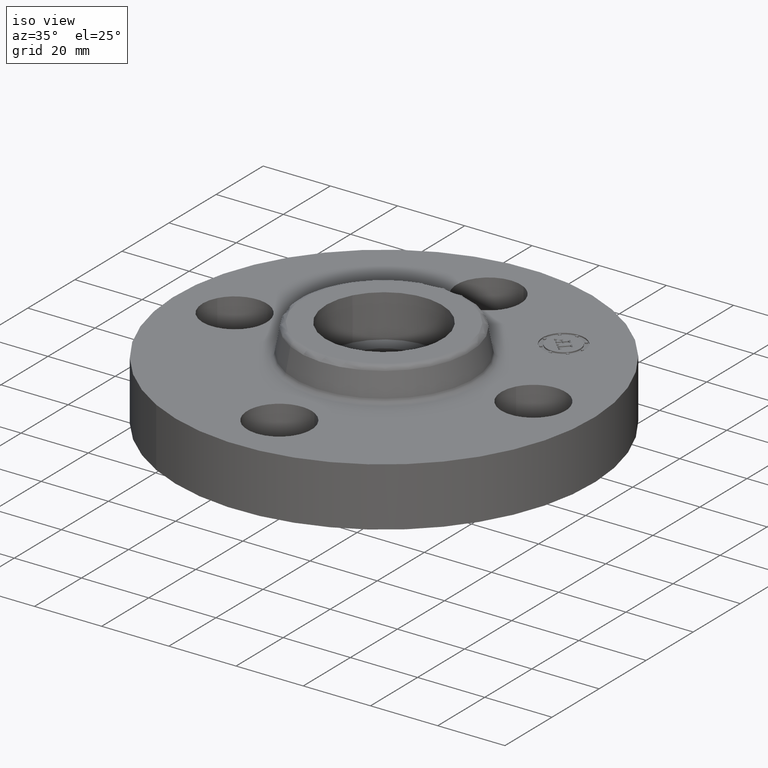
[diagram: clean part render]
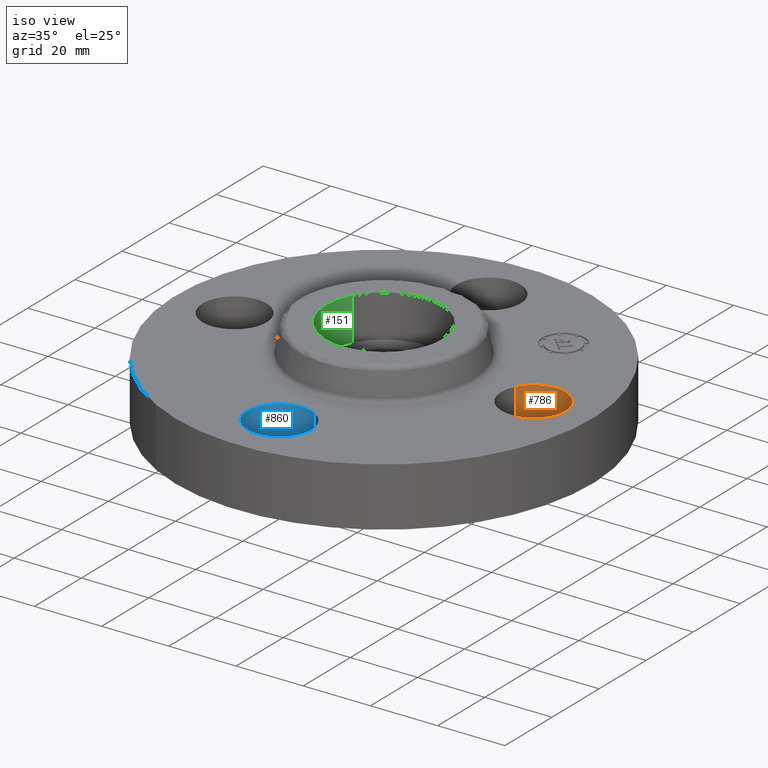
[diagram: same view with three faces highlighted in distinct colors, each labeled with its STEP entity id]
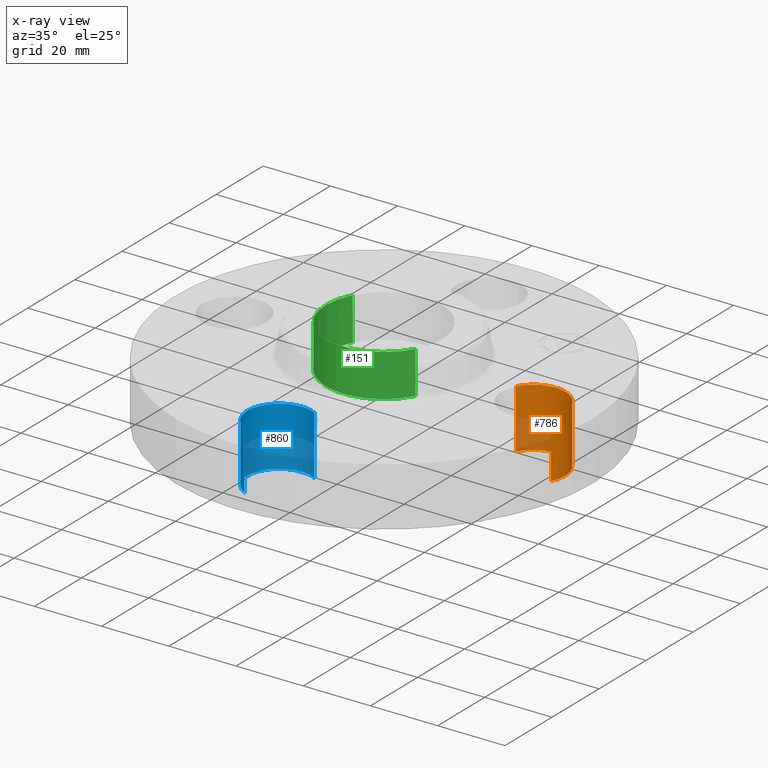
[diagram: x-ray of the same camera — body ghosted, the three highlighted faces saturated]
A machine part, iso view with three faces highlighted in distinct colors.
The next image is the same camera in x-ray (body ghosted, the three faces saturated) — at least one of them is partly hidden behind the body in this view.
Their STEP definitions:

[orange] entity #786 — the highlighted cylindrical surface (partial cylindrical patch) has radius 9.525 mm, axis along (0, -0, -1).
#523=AXIS2_PLACEMENT_3D('Circle Axis2P3D',#521,#522,$) ;
#761=AXIS2_PLACEMENT_3D('Cylinder Axis2P3D',#758,#759,#760) ;
#516=CARTESIAN_POINT('Vertex',(2.07909346074,-0.179784576988,0.)) ;
#518=CARTESIAN_POINT('Vertex',(1.42090653927,0.179784576959,0.)) ;
#521=CARTESIAN_POINT('Axis2P3D Location',(1.75,-2.74782821169E-011,0.)) ;
#725=CARTESIAN_POINT('Line Origine',(2.07909346072,-0.179784576977,0.344999999978)) ;
#729=CARTESIAN_POINT('Vertex',(2.07909346074,-0.179784576955,0.690000000003)) ;
#732=CARTESIAN_POINT('Line Origine',(1.4209065393,0.179784576977,0.344999999978)) ;
#736=CARTESIAN_POINT('Vertex',(1.4209065393,0.179784576977,0.689999999988)) ;
#758=CARTESIAN_POINT('Axis2P3D Location',(1.75000000001,0.,0.686062992129)) ;
#764=CARTESIAN_POINT('Control Point',(1.4209065393,0.179784576977,0.690000000003)) ;
#765=CARTESIAN_POINT('Control Point',(1.44914703461,0.231478456903,0.690000000002)) ;
#766=CARTESIAN_POINT('Control Point',(1.48753759951,0.27762732854,0.690000000002)) ;
#767=CARTESIAN_POINT('Control Point',(1.53463466834,0.315564920645,0.690000000001)) ;
#768=CARTESIAN_POINT('Control Point',(1.64116640576,0.370929207243,0.689999999999)) ;
#769=CARTESIAN_POINT('Control Point',(1.76072322347,0.38190110985,0.689999999998)) ;
#770=CARTESIAN_POINT('Control Point',(1.82085180885,0.375424381748,0.689999999997)) ;
#771=CARTESIAN_POINT('Control Point',(1.93532958528,0.339243530298,0.689999999996)) ;
#772=CARTESIAN_POINT('Control Point',(2.02762732855,0.262462400496,0.689999999994)) ;
#773=CARTESIAN_POINT('Control Point',(2.06556492066,0.215365331668,0.689999999993)) ;
#774=CARTESIAN_POINT('Control Point',(2.12092920725,0.108833594252,0.689999999992)) ;
#775=CARTESIAN_POINT('Control Point',(2.13190110986,-0.0107232234562,0.689999999991)) ;
#776=CARTESIAN_POINT('Control Point',(2.12542438176,-0.0708518088378,0.68999999999)) ;
#777=CARTESIAN_POINT('Control Point',(2.10733395603,-0.128090697051,0.689999999989)) ;
#778=CARTESIAN_POINT('Control Point',(2.07909346072,-0.179784576977,0.689999999988)) ;
#522=DIRECTION('Axis2P3D Direction',(0.,0.,-0.0393700787402)) ;
#726=DIRECTION('Vector Direction',(0.,0.,-0.0393700787402)) ;
#733=DIRECTION('Vector Direction',(0.,0.,-0.0393700787402)) ;
#759=DIRECTION('Axis2P3D Direction',(0.,-0.,-0.0393700787402)) ;
#760=DIRECTION('Axis2P3D XDirection',(-0.0345504945626,0.0188750212049,0.)) ;
#727=VECTOR('Line Direction',#726,0.0393700787402) ;
#734=VECTOR('Line Direction',#733,0.0393700787402) ;
#781=ORIENTED_EDGE('',*,*,#738,.F.) ;
#782=ORIENTED_EDGE('',*,*,#525,.T.) ;
#783=ORIENTED_EDGE('',*,*,#731,.T.) ;
#784=ORIENTED_EDGE('',*,*,#779,.F.) ;
#786=ADVANCED_FACE('PartBody',(#785),#762,.F.) ;
#763=B_SPLINE_CURVE_WITH_KNOTS('',5,(#764,#765,#766,#767,#768,#769,#770,#771,#772,#773,#774,#775,#776,#777,#778),.UNSPECIFIED.,.F.,.U.,(6,3,3,3,6),(-14.9618350128,-7.48091750638,0.,7.48091750638,14.9618350128),.UNSPECIFIED.) ;
#524=CIRCLE('generated circle',#523,0.375000000021) ;
#762=CYLINDRICAL_SURFACE('generated cylinder',#761,0.375000000001) ;
#525=EDGE_CURVE('',#519,#517,#524,.T.) ;
#731=EDGE_CURVE('',#517,#730,#728,.F.) ;
#738=EDGE_CURVE('',#519,#737,#735,.F.) ;
#779=EDGE_CURVE('',#737,#730,#763,.T.) ;
#780=EDGE_LOOP('',(#781,#782,#783,#784)) ;
#785=FACE_OUTER_BOUND('',#780,.T.) ;
#728=LINE('Line',#725,#727) ;
#735=LINE('Line',#732,#734) ;
#517=VERTEX_POINT('',#516) ;
#519=VERTEX_POINT('',#518) ;
#730=VERTEX_POINT('',#729) ;
#737=VERTEX_POINT('',#736) ;

[blue] entity #860 — the highlighted cylindrical surface (partial cylindrical patch) has radius 9.525 mm, axis along (0, 0, -1).
#545=AXIS2_PLACEMENT_3D('Circle Axis2P3D',#543,#544,$) ;
#835=AXIS2_PLACEMENT_3D('Cylinder Axis2P3D',#832,#833,#834) ;
#538=CARTESIAN_POINT('Vertex',(0.179784576973,-1.42090653929,0.)) ;
#540=CARTESIAN_POINT('Vertex',(-0.179784576973,-2.07909346076,0.)) ;
#543=CARTESIAN_POINT('Axis2P3D Location',(1.28118688012E-011,-1.75000000003,0.)) ;
#799=CARTESIAN_POINT('Line Origine',(0.179784576977,-1.4209065393,0.344999999978)) ;
#803=CARTESIAN_POINT('Vertex',(0.179784576973,-1.42090653933,0.690000000003)) ;
#806=CARTESIAN_POINT('Line Origine',(-0.179784576977,-2.07909346072,0.344999999978)) ;
#810=CARTESIAN_POINT('Vertex',(-0.179784576977,-2.07909346072,0.689999999988)) ;
#832=CARTESIAN_POINT('Axis2P3D Location',(-1.72584639625E-016,-1.75000000001,0.686062992129)) ;
#838=CARTESIAN_POINT('Control Point',(-0.179784576977,-2.07909346072,0.690000000003)) ;
#839=CARTESIAN_POINT('Control Point',(-0.231478456903,-2.05085296541,0.690000000002)) ;
#840=CARTESIAN_POINT('Control Point',(-0.27762732854,-2.01246240051,0.690000000002)) ;
#841=CARTESIAN_POINT('Control Point',(-0.315564920645,-1.96536533168,0.690000000001)) ;
#842=CARTESIAN_POINT('Control Point',(-0.370929207243,-1.85883359426,0.689999999999)) ;
#843=CARTESIAN_POINT('Control Point',(-0.38190110985,-1.73927677655,0.689999999998)) ;
#844=CARTESIAN_POINT('Control Point',(-0.375424381748,-1.67914819117,0.689999999997)) ;
#845=CARTESIAN_POINT('Control Point',(-0.339243530298,-1.56467041474,0.689999999996)) ;
#846=CARTESIAN_POINT('Control Point',(-0.262462400496,-1.47237267147,0.689999999994)) ;
#847=CARTESIAN_POINT('Control Point',(-0.215365331668,-1.43443507936,0.689999999993)) ;
#848=CARTESIAN_POINT('Control Point',(-0.108833594252,-1.37907079277,0.689999999992)) ;
#849=CARTESIAN_POINT('Control Point',(0.0107232234562,-1.36809889016,0.689999999991)) ;
#850=CARTESIAN_POINT('Control Point',(0.0708518088378,-1.37457561826,0.68999999999)) ;
#851=CARTESIAN_POINT('Control Point',(0.128090697051,-1.39266604399,0.689999999989)) ;
#852=CARTESIAN_POINT('Control Point',(0.179784576977,-1.4209065393,0.689999999988)) ;
#544=DIRECTION('Axis2P3D Direction',(0.,0.,-0.0393700787402)) ;
#800=DIRECTION('Vector Direction',(0.,0.,-0.0393700787402)) ;
#807=DIRECTION('Vector Direction',(0.,0.,-0.0393700787402)) ;
#833=DIRECTION('Axis2P3D Direction',(0.,0.,-0.0393700787402)) ;
#834=DIRECTION('Axis2P3D XDirection',(-0.0188750212049,-0.0345504945626,0.)) ;
#801=VECTOR('Line Direction',#800,0.0393700787402) ;
#808=VECTOR('Line Direction',#807,0.0393700787402) ;
#855=ORIENTED_EDGE('',*,*,#812,.F.) ;
#856=ORIENTED_EDGE('',*,*,#547,.T.) ;
#857=ORIENTED_EDGE('',*,*,#805,.T.) ;
#858=ORIENTED_EDGE('',*,*,#853,.F.) ;
#860=ADVANCED_FACE('PartBody',(#859),#836,.F.) ;
#837=B_SPLINE_CURVE_WITH_KNOTS('',5,(#838,#839,#840,#841,#842,#843,#844,#845,#846,#847,#848,#849,#850,#851,#852),.UNSPECIFIED.,.F.,.U.,(6,3,3,3,6),(-14.9618350128,-7.48091750638,0.,7.48091750638,14.9618350128),.UNSPECIFIED.) ;
#546=CIRCLE('generated circle',#545,0.375000000021) ;
#836=CYLINDRICAL_SURFACE('generated cylinder',#835,0.375000000001) ;
#547=EDGE_CURVE('',#541,#539,#546,.T.) ;
#805=EDGE_CURVE('',#539,#804,#802,.F.) ;
#812=EDGE_CURVE('',#541,#811,#809,.F.) ;
#853=EDGE_CURVE('',#811,#804,#837,.T.) ;
#854=EDGE_LOOP('',(#855,#856,#857,#858)) ;
#859=FACE_OUTER_BOUND('',#854,.T.) ;
#802=LINE('Line',#799,#801) ;
#809=LINE('Line',#806,#808) ;
#539=VERTEX_POINT('',#538) ;
#541=VERTEX_POINT('',#540) ;
#804=VERTEX_POINT('',#803) ;
#811=VERTEX_POINT('',#810) ;

[green] entity #151 — the highlighted cylindrical surface (partial cylindrical patch) has radius 17.272 mm, axis along (0, 0, -1).
#51=AXIS2_PLACEMENT_3D('Circle Axis2P3D',#49,#50,$) ;
#138=AXIS2_PLACEMENT_3D('Cylinder Axis2P3D',#135,#136,#137) ;
#142=AXIS2_PLACEMENT_3D('Circle Axis2P3D',#140,#141,$) ;
#44=CARTESIAN_POINT('Vertex',(-0.596756142102,0.326009366265,0.560000000002)) ;
#46=CARTESIAN_POINT('Vertex',(0.596756142102,-0.326009366265,0.560000000002)) ;
#49=CARTESIAN_POINT('Axis2P3D Location',(6.99353086382E-017,3.1470888887E-016,0.560000000002)) ;
#106=CARTESIAN_POINT('Vertex',(-0.596756142102,0.326009366216,1.06)) ;
#108=CARTESIAN_POINT('Vertex',(0.596756142102,-0.326009366241,1.06)) ;
#111=CARTESIAN_POINT('Line Origine',(-0.596756142088,0.326009366253,0.810000000001)) ;
#116=CARTESIAN_POINT('Line Origine',(0.596756142088,-0.326009366253,0.810000000001)) ;
#135=CARTESIAN_POINT('Axis2P3D Location',(1.39870617276E-016,1.04902962957E-016,1.05606299213)) ;
#140=CARTESIAN_POINT('Axis2P3D Location',(1.39870617276E-016,1.04902962957E-016,1.05999999999)) ;
#50=DIRECTION('Axis2P3D Direction',(0.,0.,-0.0393700787402)) ;
#112=DIRECTION('Vector Direction',(0.,0.,-0.0393700787402)) ;
#117=DIRECTION('Vector Direction',(0.,0.,-0.0393700787402)) ;
#136=DIRECTION('Axis2P3D Direction',(0.,0.,-0.0393700787402)) ;
#137=DIRECTION('Axis2P3D XDirection',(0.0345504945626,-0.0188750212049,0.)) ;
#141=DIRECTION('Axis2P3D Direction',(0.,0.,-0.0393700787402)) ;
#113=VECTOR('Line Direction',#112,0.0393700787402) ;
#118=VECTOR('Line Direction',#117,0.0393700787402) ;
#146=ORIENTED_EDGE('',*,*,#144,.F.) ;
#147=ORIENTED_EDGE('',*,*,#120,.F.) ;
#148=ORIENTED_EDGE('',*,*,#53,.T.) ;
#149=ORIENTED_EDGE('',*,*,#115,.T.) ;
#151=ADVANCED_FACE('PartBody',(#150),#139,.F.) ;
#52=CIRCLE('generated circle',#51,0.680000000022) ;
#143=CIRCLE('generated circle',#142,0.680000000003) ;
#139=CYLINDRICAL_SURFACE('generated cylinder',#138,0.680000000003) ;
#53=EDGE_CURVE('',#47,#45,#52,.T.) ;
#115=EDGE_CURVE('',#45,#107,#114,.F.) ;
#120=EDGE_CURVE('',#47,#109,#119,.F.) ;
#144=EDGE_CURVE('',#109,#107,#143,.T.) ;
#145=EDGE_LOOP('',(#146,#147,#148,#149)) ;
#150=FACE_OUTER_BOUND('',#145,.T.) ;
#114=LINE('Line',#111,#113) ;
#119=LINE('Line',#116,#118) ;
#45=VERTEX_POINT('',#44) ;
#47=VERTEX_POINT('',#46) ;
#107=VERTEX_POINT('',#106) ;
#109=VERTEX_POINT('',#108) ;